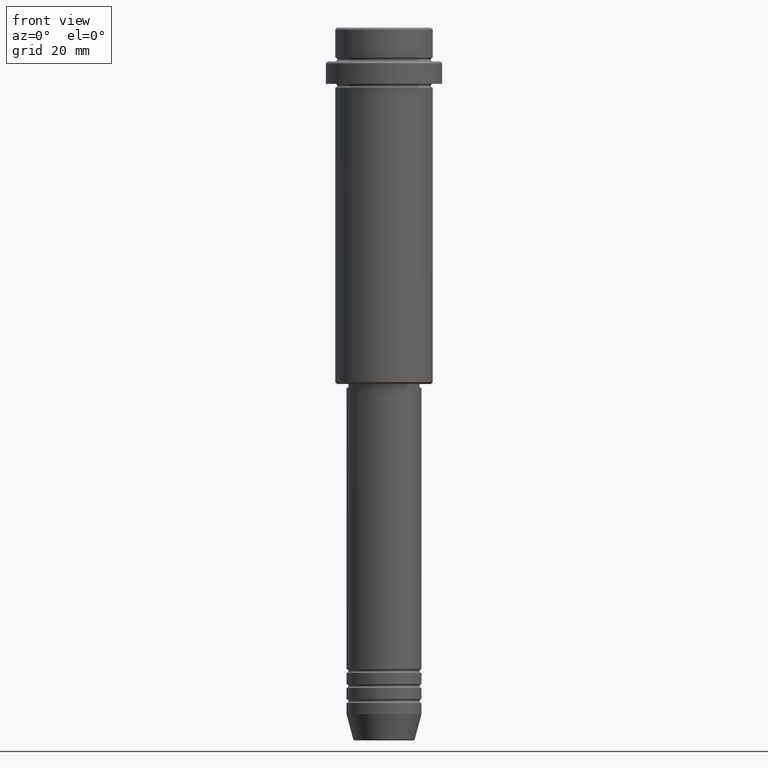
[diagram: clean part render]
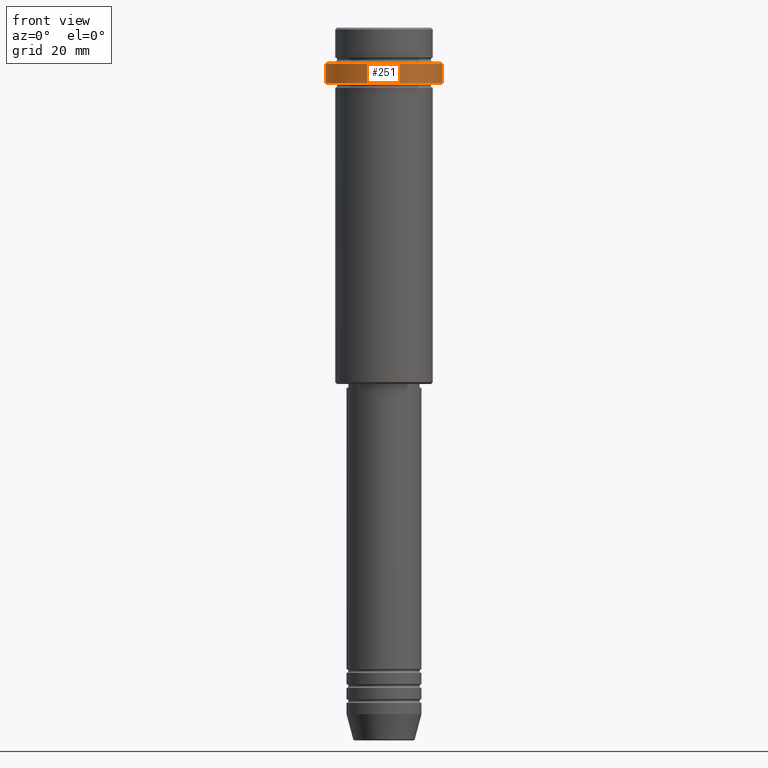
[diagram: same view with one face highlighted and labeled with its STEP entity id]
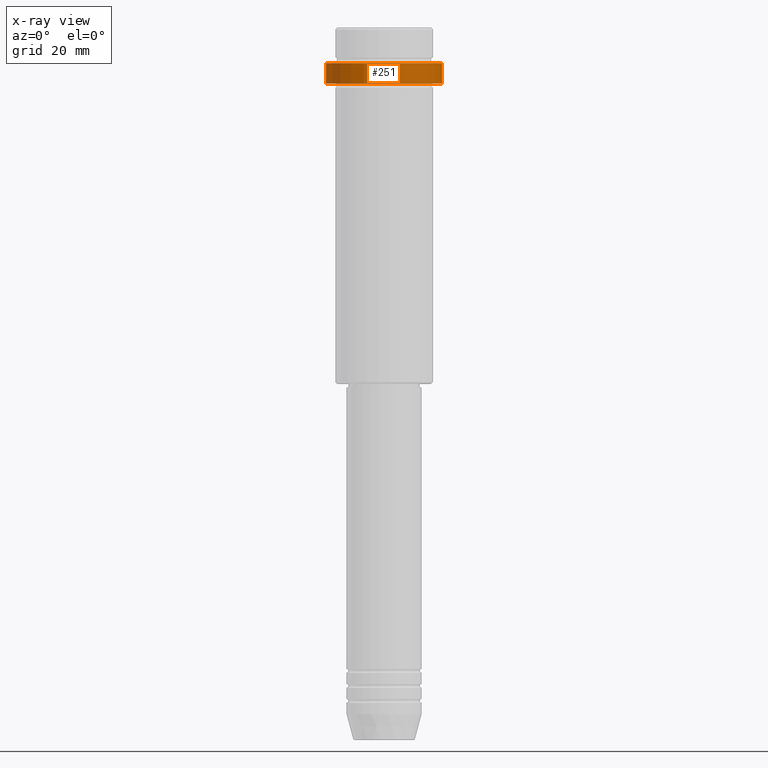
[diagram: x-ray of the same camera — body ghosted, the highlighted face saturated]
A machine part, front view. The second image highlights one B-rep face of the part: STEP entity #251.
The next image is the same camera in x-ray: the body ghosted, the highlighted face saturated — about 0% of this face is hidden behind the body in this view.
In plain terms, the highlighted cylindrical surface (partial cylindrical patch) has radius 15.5 mm, axis along (-0, -0, 1).
Its self-contained STEP definition (entity closure, byte-faithful):
#9 = VERTEX_POINT ( 'NONE', #729 ) ;
#39 = CARTESIAN_POINT ( 'NONE',  ( -15.50000000000000000, 1.898202538678397557E-15, -9.500000000000012434 ) ) ;
#43 = DIRECTION ( 'NONE',  ( 1.000000000000000000, 0.000000000000000000, 0.000000000000000000 ) ) ;
#59 = CARTESIAN_POINT ( 'NONE',  ( 15.50000000000000000, 0.000000000000000000, -9.500000000000012434 ) ) ;
#85 = DIRECTION ( 'NONE',  ( 0.000000000000000000, 0.000000000000000000, -1.000000000000000000 ) ) ;
#116 = VECTOR ( 'NONE', #731, 1000.000000000000000 ) ;
#146 = EDGE_CURVE ( 'NONE', #308, #1048, #1190, .T. ) ;
#151 = CARTESIAN_POINT ( 'NONE',  ( 0.000000000000000000, 0.000000000000000000, -15.00000000000000000 ) ) ;
#160 = CYLINDRICAL_SURFACE ( 'NONE', #1205, 15.50000000000000000 ) ;
#248 = ORIENTED_EDGE ( 'NONE', *, *, #417, .F. ) ;
#251 = ADVANCED_FACE ( 'NONE', ( #1243 ), #160, .T. ) ;
#254 = DIRECTION ( 'NONE',  ( 1.000000000000000000, 0.000000000000000000, 0.000000000000000000 ) ) ;
#267 = CARTESIAN_POINT ( 'NONE',  ( -15.50000000000000000, 1.898202538678397557E-15, -15.00000000000000000 ) ) ;
#275 = CARTESIAN_POINT ( 'NONE',  ( 0.000000000000000000, 0.000000000000000000, 0.000000000000000000 ) ) ;
#287 = ORIENTED_EDGE ( 'NONE', *, *, #658, .T. ) ;
#308 = VERTEX_POINT ( 'NONE', #59 ) ;
#366 = DIRECTION ( 'NONE',  ( -0.000000000000000000, -0.000000000000000000, 1.000000000000000000 ) ) ;
#417 = EDGE_CURVE ( 'NONE', #594, #1048, #1404, .T. ) ;
#588 = ORIENTED_EDGE ( 'NONE', *, *, #146, .T. ) ;
#594 = VERTEX_POINT ( 'NONE', #267 ) ;
#658 = EDGE_CURVE ( 'NONE', #594, #9, #779, .T. ) ;
#729 = CARTESIAN_POINT ( 'NONE',  ( 15.50000000000000000, 0.000000000000000000, -15.00000000000000000 ) ) ;
#731 = DIRECTION ( 'NONE',  ( -0.000000000000000000, -0.000000000000000000, 1.000000000000000000 ) ) ;
#779 = CIRCLE ( 'NONE', #1185, 15.50000000000000000 ) ;
#852 = VECTOR ( 'NONE', #1175, 1000.000000000000000 ) ;
#886 = EDGE_LOOP ( 'NONE', ( #248, #287, #1283, #588 ) ) ;
#920 = DIRECTION ( 'NONE',  ( -0.000000000000000000, -0.000000000000000000, 1.000000000000000000 ) ) ;
#1048 = VERTEX_POINT ( 'NONE', #39 ) ;
#1049 = CARTESIAN_POINT ( 'NONE',  ( 0.000000000000000000, 0.000000000000000000, -9.500000000000012434 ) ) ;
#1113 = AXIS2_PLACEMENT_3D ( 'NONE', #1049, #85, #1292 ) ;
#1156 = CARTESIAN_POINT ( 'NONE',  ( 15.50000000000000000, 0.000000000000000000, 0.000000000000000000 ) ) ;
#1169 = LINE ( 'NONE', #1156, #852 ) ;
#1175 = DIRECTION ( 'NONE',  ( -0.000000000000000000, -0.000000000000000000, 1.000000000000000000 ) ) ;
#1179 = CARTESIAN_POINT ( 'NONE',  ( -15.50000000000000000, 1.898202538678397557E-15, 0.000000000000000000 ) ) ;
#1185 = AXIS2_PLACEMENT_3D ( 'NONE', #151, #366, #254 ) ;
#1190 = CIRCLE ( 'NONE', #1113, 15.50000000000000000 ) ;
#1205 = AXIS2_PLACEMENT_3D ( 'NONE', #275, #920, #43 ) ;
#1243 = FACE_OUTER_BOUND ( 'NONE', #886, .T. ) ;
#1283 = ORIENTED_EDGE ( 'NONE', *, *, #1307, .T. ) ;
#1292 = DIRECTION ( 'NONE',  ( 1.000000000000000000, 0.000000000000000000, 0.000000000000000000 ) ) ;
#1307 = EDGE_CURVE ( 'NONE', #9, #308, #1169, .T. ) ;
#1404 = LINE ( 'NONE', #1179, #116 ) ;